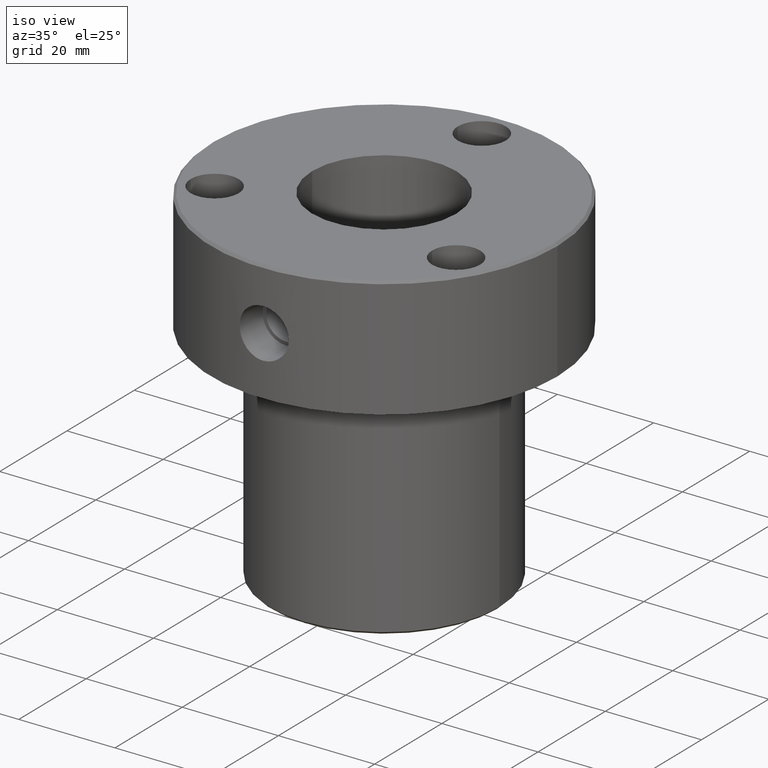
[diagram: clean part render]
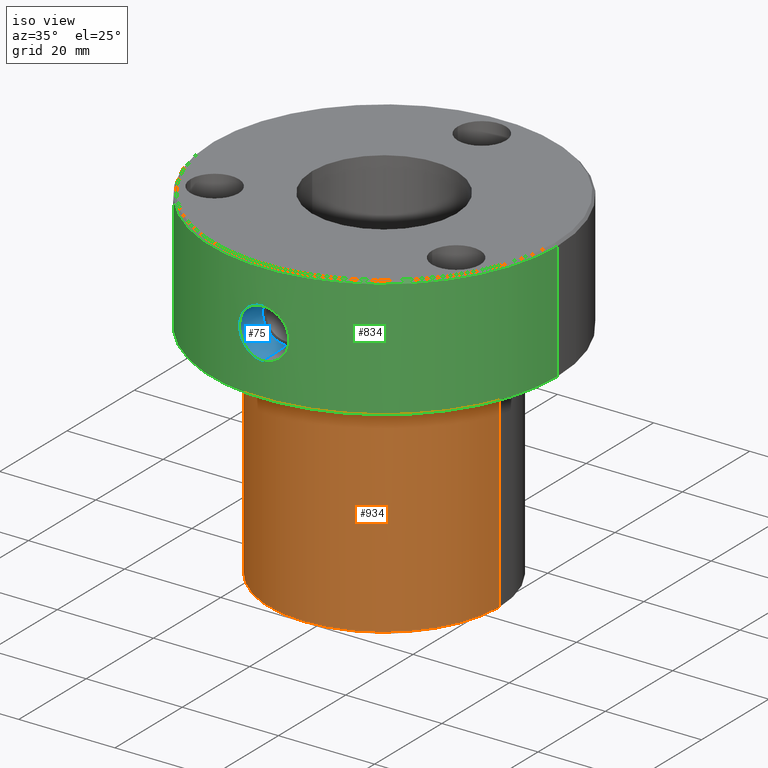
[diagram: same view with three faces highlighted in distinct colors, each labeled with its STEP entity id]
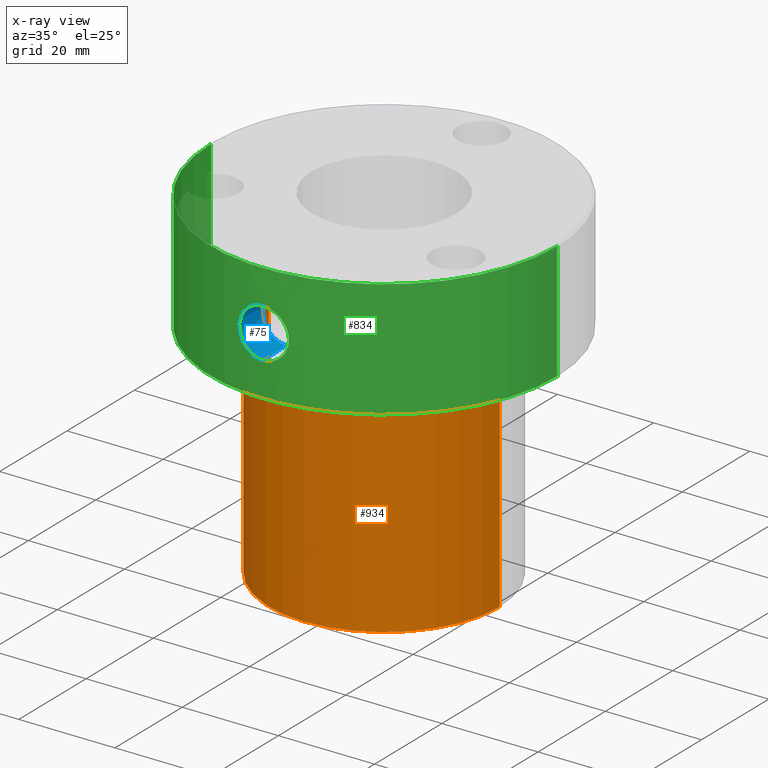
[diagram: x-ray of the same camera — body ghosted, the three highlighted faces saturated]
A machine part, iso view with three faces highlighted in distinct colors.
The next image is the same camera in x-ray (body ghosted, the three faces saturated) — at least one of them is partly hidden behind the body in this view.
Their STEP definitions:

[orange] entity #934 — the highlighted cylindrical surface (partial cylindrical patch) has radius 24 mm, axis along (-0, -0, 1).
#31 = VECTOR ( 'NONE', #103, 1000.000000000000000 ) ;
#103 = DIRECTION ( 'NONE',  ( -0.000000000000000000, -0.000000000000000000, 1.000000000000000000 ) ) ;
#159 = CARTESIAN_POINT ( 'NONE',  ( -24.00000000000000000, 2.939152317953647894E-15, -71.50000000000000000 ) ) ;
#172 = EDGE_LOOP ( 'NONE', ( #993, #276, #611, #265 ) ) ;
#220 = AXIS2_PLACEMENT_3D ( 'NONE', #839, #913, #845 ) ;
#225 = VERTEX_POINT ( 'NONE', #526 ) ;
#239 = DIRECTION ( 'NONE',  ( -1.000000000000000000, 0.000000000000000000, 0.000000000000000000 ) ) ;
#248 = AXIS2_PLACEMENT_3D ( 'NONE', #426, #609, #239 ) ;
#265 = ORIENTED_EDGE ( 'NONE', *, *, #950, .F. ) ;
#276 = ORIENTED_EDGE ( 'NONE', *, *, #604, .T. ) ;
#312 = VERTEX_POINT ( 'NONE', #159 ) ;
#345 = LINE ( 'NONE', #1122, #1079 ) ;
#418 = CARTESIAN_POINT ( 'NONE',  ( 24.00000000000000000, 0.000000000000000000, -24.99999999999999289 ) ) ;
#426 = CARTESIAN_POINT ( 'NONE',  ( 0.000000000000000000, 0.000000000000000000, -71.50000000000000000 ) ) ;
#464 = DIRECTION ( 'NONE',  ( -0.000000000000000000, -0.000000000000000000, 1.000000000000000000 ) ) ;
#526 = CARTESIAN_POINT ( 'NONE',  ( 24.00000000000000000, 0.000000000000000000, -71.50000000000000000 ) ) ;
#538 = EDGE_CURVE ( 'NONE', #225, #908, #591, .T. ) ;
#591 = LINE ( 'NONE', #882, #31 ) ;
#592 = DIRECTION ( 'NONE',  ( 1.000000000000000000, 0.000000000000000000, 0.000000000000000000 ) ) ;
#604 = EDGE_CURVE ( 'NONE', #312, #225, #1050, .T. ) ;
#609 = DIRECTION ( 'NONE',  ( -0.000000000000000000, -0.000000000000000000, 1.000000000000000000 ) ) ;
#611 = ORIENTED_EDGE ( 'NONE', *, *, #538, .T. ) ;
#615 = EDGE_CURVE ( 'NONE', #312, #1003, #345, .T. ) ;
#641 = DIRECTION ( 'NONE',  ( -0.000000000000000000, -0.000000000000000000, 1.000000000000000000 ) ) ;
#695 = AXIS2_PLACEMENT_3D ( 'NONE', #855, #464, #592 ) ;
#839 = CARTESIAN_POINT ( 'NONE',  ( 0.000000000000000000, 0.000000000000000000, 0.000000000000000000 ) ) ;
#845 = DIRECTION ( 'NONE',  ( 1.000000000000000000, 0.000000000000000000, 0.000000000000000000 ) ) ;
#855 = CARTESIAN_POINT ( 'NONE',  ( 0.000000000000000000, 0.000000000000000000, -24.99999999999999289 ) ) ;
#882 = CARTESIAN_POINT ( 'NONE',  ( 24.00000000000000000, 0.000000000000000000, 0.000000000000000000 ) ) ;
#896 = CARTESIAN_POINT ( 'NONE',  ( -24.00000000000000000, 2.939152317953647894E-15, -24.99999999999999289 ) ) ;
#908 = VERTEX_POINT ( 'NONE', #418 ) ;
#913 = DIRECTION ( 'NONE',  ( -0.000000000000000000, -0.000000000000000000, 1.000000000000000000 ) ) ;
#934 = ADVANCED_FACE ( 'NONE', ( #1036 ), #1028, .T. ) ;
#950 = EDGE_CURVE ( 'NONE', #1003, #908, #1030, .T. ) ;
#993 = ORIENTED_EDGE ( 'NONE', *, *, #615, .F. ) ;
#1003 = VERTEX_POINT ( 'NONE', #896 ) ;
#1028 = CYLINDRICAL_SURFACE ( 'NONE', #220, 24.00000000000000000 ) ;
#1030 = CIRCLE ( 'NONE', #695, 24.00000000000000000 ) ;
#1036 = FACE_OUTER_BOUND ( 'NONE', #172, .T. ) ;
#1050 = CIRCLE ( 'NONE', #248, 24.00000000000000000 ) ;
#1079 = VECTOR ( 'NONE', #641, 1000.000000000000000 ) ;
#1122 = CARTESIAN_POINT ( 'NONE',  ( -24.00000000000000000, 2.939152317953647894E-15, 0.000000000000000000 ) ) ;

[blue] entity #75 — the highlighted conical surface has half-angle 1.715 deg.
#38 = CARTESIAN_POINT ( 'NONE',  ( -2.577004002287619056, -35.90872625943177354, -8.289395687327473894 ) ) ;
#44 = CARTESIAN_POINT ( 'NONE',  ( -2.275587720639904443, -35.92934925681800706, -17.37244262154168339 ) ) ;
#46 = LINE ( 'NONE', #57, #179 ) ;
#51 = DIRECTION ( 'NONE',  ( -0.000000000000000000, -1.000000000000000000, -0.000000000000000000 ) ) ;
#53 = CARTESIAN_POINT ( 'NONE',  ( -1.335362368965270274, -35.97674113740099955, -17.72768090413853415 ) ) ;
#56 = CARTESIAN_POINT ( 'NONE',  ( -0.3361067275072111560, -36.00000000000001421, -7.606626999999983596 ) ) ;
#57 = CARTESIAN_POINT ( 'NONE',  ( 0.000000000000000000, -36.00000000000000000, -17.89337299999998621 ) ) ;
#74 = CARTESIAN_POINT ( 'NONE',  ( 3.571817028434180789E-21, -36.00000000000000000, -17.89337299999998621 ) ) ;
#75 = ADVANCED_FACE ( 'NONE', ( #268 ), #450, .F. ) ;
#115 = CARTESIAN_POINT ( 'NONE',  ( -4.870061513962859578, -35.66930335032450472, -11.09241811007563072 ) ) ;
#127 = CARTESIAN_POINT ( 'NONE',  ( -5.132303483038378467, -35.63228116415699986, -12.58068670786477483 ) ) ;
#136 = CARTESIAN_POINT ( 'NONE',  ( -4.452942759247334514, -35.72402988663296242, -10.17069915215211573 ) ) ;
#140 = CARTESIAN_POINT ( 'NONE',  ( -4.615790708340534287, -35.70309573215841681, -15.02364172483657256 ) ) ;
#151 = DIRECTION ( 'NONE',  ( 0.000000000000000000, 0.000000000000000000, -1.000000000000000000 ) ) ;
#163 = EDGE_CURVE ( 'NONE', #335, #892, #245, .T. ) ;
#179 = VECTOR ( 'NONE', #432, 1000.000000000000227 ) ;
#211 = CARTESIAN_POINT ( 'NONE',  ( -4.968358492892852141, -35.65557240957834750, -14.08375826072354720 ) ) ;
#219 = CARTESIAN_POINT ( 'NONE',  ( -4.967239168825848594, -35.65572824311934852, -11.41264983495981333 ) ) ;
#245 = CIRCLE ( 'NONE', #775, 4.936178932939922603 ) ;
#258 = EDGE_CURVE ( 'NONE', #335, #645, #940, .T. ) ;
#268 = FACE_OUTER_BOUND ( 'NONE', #1032, .T. ) ;
#288 = VERTEX_POINT ( 'NONE', #74 ) ;
#315 = CARTESIAN_POINT ( 'NONE',  ( -4.082279283164364614, -35.76828787354437367, -15.88554681719237038 ) ) ;
#321 = CARTESIAN_POINT ( 'NONE',  ( -4.081358766602609656, -35.76838717605889428, -9.613498045051994012 ) ) ;
#332 = CARTESIAN_POINT ( 'NONE',  ( -3.869813446050350159, -35.79220196518004826, -9.354639173738936719 ) ) ;
#335 = VERTEX_POINT ( 'NONE', #664 ) ;
#344 = CARTESIAN_POINT ( 'NONE',  ( 0.000000000000000000, -29.08000000000000185, -12.74999999999998757 ) ) ;
#425 = CARTESIAN_POINT ( 'NONE',  ( -3.132282132631538207, -35.86455603857671548, -8.661827584422121973 ) ) ;
#432 = DIRECTION ( 'NONE',  ( 0.000000000000000000, -0.9995520592605567911, -0.02992792722492342017 ) ) ;
#450 = CONICAL_SURFACE ( 'NONE', #1159, 5.143372999999999529, 0.02993239667170296756 ) ;
#512 = CARTESIAN_POINT ( 'NONE',  ( -5.091049653408040498, -35.63820270606292695, -12.07721189375376447 ) ) ;
#522 = CARTESIAN_POINT ( 'NONE',  ( -4.870985339044030304, -35.66917535561609043, -14.40470360826312657 ) ) ;
#527 = CARTESIAN_POINT ( 'NONE',  ( -3.394016580218661261, -35.84044962157522463, -8.877090623383150358 ) ) ;
#534 = ORIENTED_EDGE ( 'NONE', *, *, #608, .F. ) ;
#535 = CARTESIAN_POINT ( 'NONE',  ( 0.000000000000000000, -36.00000000000000000, -12.74999999999998757 ) ) ;
#607 = CARTESIAN_POINT ( 'NONE',  ( -1.655426372826040105, -35.96325904331931156, -17.63009013256227320 ) ) ;
#608 = EDGE_CURVE ( 'NONE', #892, #288, #46, .T. ) ;
#617 = CARTESIAN_POINT ( 'NONE',  ( -3.132516396897012001, -35.86453791635487676, -16.83802151031922989 ) ) ;
#626 = CARTESIAN_POINT ( 'NONE',  ( -2.279323674699770486, -35.92913036428053886, -8.129239255269382625 ) ) ;
#633 = CARTESIAN_POINT ( 'NONE',  ( -5.066001198085445800, -35.64178358665389368, -11.90850973993781992 ) ) ;
#639 = CARTESIAN_POINT ( 'NONE',  ( -2.576638186247376172, -35.90875484596557499, -17.21084344985863979 ) ) ;
#645 = VERTEX_POINT ( 'NONE', #1103 ) ;
#664 = CARTESIAN_POINT ( 'NONE',  ( 6.172785113075274999E-16, -29.08000000000000185, -7.813821067060064074 ) ) ;
#708 = CARTESIAN_POINT ( 'NONE',  ( -0.6715231242244814602, -35.99412889237471092, -17.85196652225037539 ) ) ;
#723 = CARTESIAN_POINT ( 'NONE',  ( -0.8401113678963481046, -35.99057497138012707, -17.82680413233868322 ) ) ;
#775 = AXIS2_PLACEMENT_3D ( 'NONE', #344, #1100, #995 ) ;
#793 = EDGE_CURVE ( 'NONE', #645, #288, #949, .T. ) ;
#798 = CARTESIAN_POINT ( 'NONE',  ( -1.655037379787138496, -35.96329484931852960, -7.869619187362687285 ) ) ;
#821 = CARTESIAN_POINT ( 'NONE',  ( -0.6768412377640536937, -35.99513981105601346, -7.640486352620248667 ) ) ;
#875 = CARTESIAN_POINT ( 'NONE',  ( 0.000000000000000000, -29.08000000000000185, -17.68617893293991017 ) ) ;
#892 = VERTEX_POINT ( 'NONE', #875 ) ;
#900 = CARTESIAN_POINT ( 'NONE',  ( -3.390904222931096612, -35.84074771024629769, -16.62568980151061382 ) ) ;
#921 = DIRECTION ( 'NONE',  ( 3.665114028111739322E-18, -0.9995520592605567911, 0.02992792722492342017 ) ) ;
#940 = LINE ( 'NONE', #1135, #1202 ) ;
#949 = B_SPLINE_CURVE_WITH_KNOTS ( 'NONE', 3,
 ( #979, #56, #821, #1206, #798, #626, #38, #425, #527, #332, #321, #136, #1107, #115, #219, #633, #512, #1192, #127, #996, #1005, #211, #522, #140, #1011, #315, #1115, #900, #617, #639, #44, #607, #53, #723, #708, #1185, #1095, #1211 ),
 .UNSPECIFIED., .F., .F.,
 ( 4, 2, 2, 2, 2, 2, 2, 2, 2, 2, 2, 2, 2, 2, 2, 2, 2, 2, 4 ),
 ( 0.02023265630584750174, 0.02123748081429662621, 0.02224230532274575414, 0.02324712983119488208, 0.02425195433964400654, 0.02525677884809313448, 0.02626160335654226241, 0.02726642786499138688, 0.02776884011921594911, 0.02827125237344051134, 0.02927607688188963581, 0.03028090139033876027, 0.03128572589878789167, 0.03229055040723700920, 0.03329537491568613367, 0.03430019942413525813, 0.03530502393258437566, 0.03580743618680894136, 0.03630984844103350012 ),
 .UNSPECIFIED. ) ;
#979 = CARTESIAN_POINT ( 'NONE',  ( 6.298815282759539701E-16, -36.00000000000000000, -7.606626999999987149 ) ) ;
#985 = ORIENTED_EDGE ( 'NONE', *, *, #258, .T. ) ;
#995 = DIRECTION ( 'NONE',  ( 0.000000000000000000, 0.000000000000000000, -1.000000000000000000 ) ) ;
#996 = CARTESIAN_POINT ( 'NONE',  ( -5.132480326373275226, -35.63225569218960942, -13.08318454073698511 ) ) ;
#1005 = CARTESIAN_POINT ( 'NONE',  ( -5.100166516558003238, -35.63695738235751520, -13.41789004543118402 ) ) ;
#1011 = CARTESIAN_POINT ( 'NONE',  ( -4.456035437276217870, -35.72365000573475413, -15.32423349465898177 ) ) ;
#1032 = EDGE_LOOP ( 'NONE', ( #1145, #985, #1086, #534 ) ) ;
#1086 = ORIENTED_EDGE ( 'NONE', *, *, #793, .T. ) ;
#1095 = CARTESIAN_POINT ( 'NONE',  ( -0.1675429042383714540, -36.00000000000000711, -17.89337299999999331 ) ) ;
#1100 = DIRECTION ( 'NONE',  ( -0.000000000000000000, -1.000000000000000000, -0.000000000000000000 ) ) ;
#1103 = CARTESIAN_POINT ( 'NONE',  ( 6.298815282759539701E-16, -36.00000000000000000, -7.606626999999987149 ) ) ;
#1107 = CARTESIAN_POINT ( 'NONE',  ( -4.613851569483705894, -35.70334822312924672, -10.47230001879731631 ) ) ;
#1115 = CARTESIAN_POINT ( 'NONE',  ( -3.867744682383481347, -35.79242907306673516, -16.14777688475753337 ) ) ;
#1135 = CARTESIAN_POINT ( 'NONE',  ( 6.298815281270918744E-16, -36.00000000000000000, -7.606626999999987149 ) ) ;
#1145 = ORIENTED_EDGE ( 'NONE', *, *, #163, .F. ) ;
#1159 = AXIS2_PLACEMENT_3D ( 'NONE', #535, #51, #151 ) ;
#1185 = CARTESIAN_POINT ( 'NONE',  ( -0.3353535181282963351, -35.99883048162996602, -17.88517202957152108 ) ) ;
#1192 = CARTESIAN_POINT ( 'NONE',  ( -5.124100043890623013, -35.63346569493480587, -12.41299369725978963 ) ) ;
#1202 = VECTOR ( 'NONE', #921, 1000.000000000000227 ) ;
#1206 = CARTESIAN_POINT ( 'NONE',  ( -1.334472260636662133, -35.97676177568234124, -7.772172400854750585 ) ) ;
#1211 = CARTESIAN_POINT ( 'NONE',  ( 3.571817028434180789E-21, -36.00000000000000000, -17.89337299999998621 ) ) ;

[green] entity #834 — the highlighted cylindrical surface (partial cylindrical patch) has radius 36 mm, axis along (-0, -0, 1).
#5 = DIRECTION ( 'NONE',  ( -0.000000000000000000, -0.000000000000000000, 1.000000000000000000 ) ) ;
#8 = CARTESIAN_POINT ( 'NONE',  ( 3.135146423121419890, -35.86431980584649892, -16.83614949334460675 ) ) ;
#32 = EDGE_CURVE ( 'NONE', #288, #645, #904, .T. ) ;
#38 = CARTESIAN_POINT ( 'NONE',  ( -2.577004002287619056, -35.90872625943177354, -8.289395687327473894 ) ) ;
#39 = CARTESIAN_POINT ( 'NONE',  ( 36.00000000000000000, 0.000000000000000000, -24.99999999999999289 ) ) ;
#44 = CARTESIAN_POINT ( 'NONE',  ( -2.275587720639904443, -35.92934925681800706, -17.37244262154168339 ) ) ;
#53 = CARTESIAN_POINT ( 'NONE',  ( -1.335362368965270274, -35.97674113740099955, -17.72768090413853415 ) ) ;
#56 = CARTESIAN_POINT ( 'NONE',  ( -0.3361067275072111560, -36.00000000000001421, -7.606626999999983596 ) ) ;
#74 = CARTESIAN_POINT ( 'NONE',  ( 3.571817028434180789E-21, -36.00000000000000000, -17.89337299999998621 ) ) ;
#76 = CARTESIAN_POINT ( 'NONE',  ( 1.654126241111264051, -35.96234114261679338, -7.878137646354945289 ) ) ;
#79 = ORIENTED_EDGE ( 'NONE', *, *, #204, .T. ) ;
#82 = FACE_BOUND ( 'NONE', #314, .T. ) ;
#96 = CARTESIAN_POINT ( 'NONE',  ( 3.134851411221557971, -35.86436338319735029, -8.663408683850164493 ) ) ;
#106 = DIRECTION ( 'NONE',  ( 1.000000000000000000, 0.000000000000000000, 0.000000000000000000 ) ) ;
#114 = VERTEX_POINT ( 'NONE', #632 ) ;
#115 = CARTESIAN_POINT ( 'NONE',  ( -4.870061513962859578, -35.66930335032450472, -11.09241811007563072 ) ) ;
#127 = CARTESIAN_POINT ( 'NONE',  ( -5.132303483038378467, -35.63228116415699986, -12.58068670786477483 ) ) ;
#136 = CARTESIAN_POINT ( 'NONE',  ( -4.452942759247334514, -35.72402988663296242, -10.17069915215211573 ) ) ;
#140 = CARTESIAN_POINT ( 'NONE',  ( -4.615790708340534287, -35.70309573215841681, -15.02364172483657256 ) ) ;
#169 = CARTESIAN_POINT ( 'NONE',  ( 4.968518926129060098, -35.65554893085495536, -11.41781017927310771 ) ) ;
#178 = CARTESIAN_POINT ( 'NONE',  ( 4.073750510498462596, -35.76892631714162718, -9.616935401809428186 ) ) ;
#189 = ORIENTED_EDGE ( 'NONE', *, *, #970, .T. ) ;
#204 = EDGE_CURVE ( 'NONE', #562, #114, #532, .T. ) ;
#211 = CARTESIAN_POINT ( 'NONE',  ( -4.968358492892852141, -35.65557240957834750, -14.08375826072354720 ) ) ;
#219 = CARTESIAN_POINT ( 'NONE',  ( -4.967239168825848594, -35.65572824311934852, -11.41264983495981333 ) ) ;
#271 = EDGE_CURVE ( 'NONE', #805, #114, #1131, .T. ) ;
#288 = VERTEX_POINT ( 'NONE', #74 ) ;
#291 = CARTESIAN_POINT ( 'NONE',  ( 6.298815282759539701E-16, -36.00000000000000000, -7.606626999999987149 ) ) ;
#314 = EDGE_LOOP ( 'NONE', ( #977, #947 ) ) ;
#315 = CARTESIAN_POINT ( 'NONE',  ( -4.082279283164364614, -35.76828787354437367, -15.88554681719237038 ) ) ;
#321 = CARTESIAN_POINT ( 'NONE',  ( -4.081358766602609656, -35.76838717605889428, -9.613498045051994012 ) ) ;
#326 = DIRECTION ( 'NONE',  ( -0.000000000000000000, -0.000000000000000000, 1.000000000000000000 ) ) ;
#332 = CARTESIAN_POINT ( 'NONE',  ( -3.869813446050350159, -35.79220196518004826, -9.354639173738936719 ) ) ;
#359 = CARTESIAN_POINT ( 'NONE',  ( 0.6695539294417952592, -35.99531588153639916, -17.86076756866215121 ) ) ;
#369 = LINE ( 'NONE', #891, #593 ) ;
#372 = DIRECTION ( 'NONE',  ( 1.000000000000000000, 0.000000000000000000, 0.000000000000000000 ) ) ;
#374 = CARTESIAN_POINT ( 'NONE',  ( 4.612444849566888827, -35.70353119707042566, -10.46937732415865874 ) ) ;
#379 = CARTESIAN_POINT ( 'NONE',  ( 3.747803063487487041, -35.80458155935752984, -9.232037138303441637 ) ) ;
#383 = ORIENTED_EDGE ( 'NONE', *, *, #457, .T. ) ;
#388 = CARTESIAN_POINT ( 'NONE',  ( 1.657239417139547255, -35.96316859498720220, -17.62941402757830645 ) ) ;
#425 = CARTESIAN_POINT ( 'NONE',  ( -3.132282132631538207, -35.86455603857671548, -8.661827584422121973 ) ) ;
#447 = ORIENTED_EDGE ( 'NONE', *, *, #271, .F. ) ;
#457 = EDGE_CURVE ( 'NONE', #805, #1216, #1161, .T. ) ;
#461 = CARTESIAN_POINT ( 'NONE',  ( 1.812095684196976642, -35.95469751019649607, -7.934954253576164795 ) ) ;
#470 = CARTESIAN_POINT ( 'NONE',  ( 2.121153321150935245, -35.93778920659239873, -17.43656400794046490 ) ) ;
#475 = CARTESIAN_POINT ( 'NONE',  ( 3.571817028434180789E-21, -36.00000000000000000, -17.89337299999998621 ) ) ;
#479 = CARTESIAN_POINT ( 'NONE',  ( 2.571459298321395526, -35.90915553629102419, -8.285819686161667974 ) ) ;
#490 = CARTESIAN_POINT ( 'NONE',  ( 4.083460599242995315, -35.76814635166661560, -15.88375512178560456 ) ) ;
#512 = CARTESIAN_POINT ( 'NONE',  ( -5.091049653408040498, -35.63820270606292695, -12.07721189375376447 ) ) ;
#522 = CARTESIAN_POINT ( 'NONE',  ( -4.870985339044030304, -35.66917535561609043, -14.40470360826312657 ) ) ;
#527 = CARTESIAN_POINT ( 'NONE',  ( -3.394016580218661261, -35.84044962157522463, -8.877090623383150358 ) ) ;
#532 = CIRCLE ( 'NONE', #925, 36.00000000000000000 ) ;
#560 = CARTESIAN_POINT ( 'NONE',  ( 1.335832289506346138, -35.97675110359922712, -17.72775875594555117 ) ) ;
#562 = VERTEX_POINT ( 'NONE', #698 ) ;
#570 = CARTESIAN_POINT ( 'NONE',  ( 0.000000000000000000, 0.000000000000000000, -24.99999999999999289 ) ) ;
#574 = DIRECTION ( 'NONE',  ( -0.000000000000000000, -0.000000000000000000, 1.000000000000000000 ) ) ;
#577 = CARTESIAN_POINT ( 'NONE',  ( 3.860273976072881918, -35.79259445657086758, -9.356314350695761561 ) ) ;
#583 = CARTESIAN_POINT ( 'NONE',  ( 3.393533373212614723, -35.84048388370862881, -8.876894584173426139 ) ) ;
#588 = CYLINDRICAL_SURFACE ( 'NONE', #1223, 36.00000000000000000 ) ;
#593 = VECTOR ( 'NONE', #326, 1000.000000000000000 ) ;
#607 = CARTESIAN_POINT ( 'NONE',  ( -1.655426372826040105, -35.96325904331931156, -17.63009013256227320 ) ) ;
#617 = CARTESIAN_POINT ( 'NONE',  ( -3.132516396897012001, -35.86453791635487676, -16.83802151031922989 ) ) ;
#619 = AXIS2_PLACEMENT_3D ( 'NONE', #570, #5, #948 ) ;
#626 = CARTESIAN_POINT ( 'NONE',  ( -2.279323674699770486, -35.92913036428053886, -8.129239255269382625 ) ) ;
#632 = CARTESIAN_POINT ( 'NONE',  ( -36.00000000000000000, 4.408728476930470856E-15, -0.4999999999999796274 ) ) ;
#633 = CARTESIAN_POINT ( 'NONE',  ( -5.066001198085445800, -35.64178358665389368, -11.90850973993781992 ) ) ;
#639 = CARTESIAN_POINT ( 'NONE',  ( -2.576638186247376172, -35.90875484596557499, -17.21084344985863979 ) ) ;
#645 = VERTEX_POINT ( 'NONE', #1103 ) ;
#663 = CARTESIAN_POINT ( 'NONE',  ( 4.870776703703421973, -35.66920957809382742, -14.40600504608524979 ) ) ;
#666 = CARTESIAN_POINT ( 'NONE',  ( 1.165764879794188413, -35.98150000286027250, -7.738214538170568702 ) ) ;
#681 = CARTESIAN_POINT ( 'NONE',  ( 0.3363308217378480625, -36.00000000000000000, -7.606626999999984484 ) ) ;
#698 = CARTESIAN_POINT ( 'NONE',  ( 36.00000000000000000, 0.000000000000000000, -0.4999999999999796274 ) ) ;
#708 = CARTESIAN_POINT ( 'NONE',  ( -0.6715231242244814602, -35.99412889237471092, -17.85196652225037539 ) ) ;
#723 = CARTESIAN_POINT ( 'NONE',  ( -0.8401113678963481046, -35.99057497138012707, -17.82680413233868322 ) ) ;
#738 = VECTOR ( 'NONE', #933, 1000.000000000000000 ) ;
#749 = CARTESIAN_POINT ( 'NONE',  ( 3.393221447277317893, -35.84051879824716025, -16.62348283471833454 ) ) ;
#763 = CARTESIAN_POINT ( 'NONE',  ( 2.570089392832816344, -35.90845072443985941, -17.20524208273297617 ) ) ;
#769 = CARTESIAN_POINT ( 'NONE',  ( 1.331207150646882331, -35.97574184921764129, -7.779769563068786198 ) ) ;
#777 = CARTESIAN_POINT ( 'NONE',  ( 4.869320642961361578, -35.66940571283051753, -11.09014689618406635 ) ) ;
#793 = EDGE_CURVE ( 'NONE', #645, #288, #949, .T. ) ;
#798 = CARTESIAN_POINT ( 'NONE',  ( -1.655037379787138496, -35.96329484931852960, -7.869619187362687285 ) ) ;
#805 = VERTEX_POINT ( 'NONE', #894 ) ;
#821 = CARTESIAN_POINT ( 'NONE',  ( -0.6768412377640536937, -35.99513981105601346, -7.640486352620248667 ) ) ;
#834 = ADVANCED_FACE ( 'NONE', ( #1166, #82 ), #588, .T. ) ;
#858 = CARTESIAN_POINT ( 'NONE',  ( 0.000000000000000000, 0.000000000000000000, 0.000000000000000000 ) ) ;
#860 = CARTESIAN_POINT ( 'NONE',  ( 0.3353092220245999511, -35.99999999999999289, -17.89337299999998621 ) ) ;
#870 = CARTESIAN_POINT ( 'NONE',  ( 5.132468915830044054, -35.63225733572879506, -13.08687422678917933 ) ) ;
#891 = CARTESIAN_POINT ( 'NONE',  ( 36.00000000000000000, 0.000000000000000000, 0.000000000000000000 ) ) ;
#894 = CARTESIAN_POINT ( 'NONE',  ( -36.00000000000000000, 4.408728476930470856E-15, -24.99999999999999289 ) ) ;
#900 = CARTESIAN_POINT ( 'NONE',  ( -3.390904222931096612, -35.84074771024629769, -16.62568980151061382 ) ) ;
#904 = B_SPLINE_CURVE_WITH_KNOTS ( 'NONE', 3,
 ( #475, #860, #359, #560, #388, #470, #958, #763, #1249, #8, #749, #1150, #490, #1038, #1051, #663, #1143, #1062, #870, #1255, #1066, #169, #777, #374, #1168, #964, #178, #577, #379, #583, #96, #479, #1243, #461, #76, #769, #666, #1158, #681, #291 ),
 .UNSPECIFIED., .F., .F.,
 ( 4, 2, 2, 2, 2, 2, 2, 2, 2, 2, 2, 2, 2, 2, 2, 2, 2, 2, 2, 4 ),
 ( 0.004144744938621530879, 0.005150239399073153028, 0.006155733859524775177, 0.006658481089750586251, 0.007161228319976396459, 0.008166722780428018608, 0.009172217240879639022, 0.01017771170133125944, 0.01118320616178287812, 0.01218870062223450026, 0.01319419508268611721, 0.01419968954313774109, 0.01520518400358935804, 0.01570793123381516998, 0.01621067846404098539, 0.01721617292449261274, 0.01822166738494424357, 0.01872441461517005898, 0.01922716184539587439, 0.02023265630584750174 ),
 .UNSPECIFIED. ) ;
#925 = AXIS2_PLACEMENT_3D ( 'NONE', #1118, #1004, #106 ) ;
#933 = DIRECTION ( 'NONE',  ( -0.000000000000000000, -0.000000000000000000, 1.000000000000000000 ) ) ;
#947 = ORIENTED_EDGE ( 'NONE', *, *, #793, .F. ) ;
#948 = DIRECTION ( 'NONE',  ( 1.000000000000000000, 0.000000000000000000, 0.000000000000000000 ) ) ;
#949 = B_SPLINE_CURVE_WITH_KNOTS ( 'NONE', 3,
 ( #979, #56, #821, #1206, #798, #626, #38, #425, #527, #332, #321, #136, #1107, #115, #219, #633, #512, #1192, #127, #996, #1005, #211, #522, #140, #1011, #315, #1115, #900, #617, #639, #44, #607, #53, #723, #708, #1185, #1095, #1211 ),
 .UNSPECIFIED., .F., .F.,
 ( 4, 2, 2, 2, 2, 2, 2, 2, 2, 2, 2, 2, 2, 2, 2, 2, 2, 2, 4 ),
 ( 0.02023265630584750174, 0.02123748081429662621, 0.02224230532274575414, 0.02324712983119488208, 0.02425195433964400654, 0.02525677884809313448, 0.02626160335654226241, 0.02726642786499138688, 0.02776884011921594911, 0.02827125237344051134, 0.02927607688188963581, 0.03028090139033876027, 0.03128572589878789167, 0.03229055040723700920, 0.03329537491568613367, 0.03430019942413525813, 0.03530502393258437566, 0.03580743618680894136, 0.03630984844103350012 ),
 .UNSPECIFIED. ) ;
#958 = CARTESIAN_POINT ( 'NONE',  ( 2.272818404094694156, -35.92849133234913239, -17.36465140196043677 ) ) ;
#964 = CARTESIAN_POINT ( 'NONE',  ( 4.175012378777728905, -35.75721056505209106, -9.753807887219853257 ) ) ;
#970 = EDGE_CURVE ( 'NONE', #1216, #562, #369, .T. ) ;
#977 = ORIENTED_EDGE ( 'NONE', *, *, #32, .F. ) ;
#979 = CARTESIAN_POINT ( 'NONE',  ( 6.298815282759539701E-16, -36.00000000000000000, -7.606626999999987149 ) ) ;
#996 = CARTESIAN_POINT ( 'NONE',  ( -5.132480326373275226, -35.63225569218960942, -13.08318454073698511 ) ) ;
#1004 = DIRECTION ( 'NONE',  ( 0.000000000000000000, 0.000000000000000000, -1.000000000000000000 ) ) ;
#1005 = CARTESIAN_POINT ( 'NONE',  ( -5.100166516558003238, -35.63695738235751520, -13.41789004543118402 ) ) ;
#1011 = CARTESIAN_POINT ( 'NONE',  ( -4.456035437276217870, -35.72365000573475413, -15.32423349465898177 ) ) ;
#1020 = EDGE_LOOP ( 'NONE', ( #447, #383, #189, #79 ) ) ;
#1038 = CARTESIAN_POINT ( 'NONE',  ( 4.454688299235059823, -35.72381133161002964, -15.32627421644871468 ) ) ;
#1046 = CARTESIAN_POINT ( 'NONE',  ( -36.00000000000000000, 4.408728476930470856E-15, 0.000000000000000000 ) ) ;
#1051 = CARTESIAN_POINT ( 'NONE',  ( 4.612450577060112522, -35.70353312065206097, -15.03093629859708713 ) ) ;
#1062 = CARTESIAN_POINT ( 'NONE',  ( 5.099012622426519314, -35.63712115515072298, -13.42446733174833362 ) ) ;
#1066 = CARTESIAN_POINT ( 'NONE',  ( 5.099130274031547394, -35.63710454467858568, -12.07612216934112404 ) ) ;
#1095 = CARTESIAN_POINT ( 'NONE',  ( -0.1675429042383714540, -36.00000000000000711, -17.89337299999999331 ) ) ;
#1103 = CARTESIAN_POINT ( 'NONE',  ( 6.298815282759539701E-16, -36.00000000000000000, -7.606626999999987149 ) ) ;
#1107 = CARTESIAN_POINT ( 'NONE',  ( -4.613851569483705894, -35.70334822312924672, -10.47230001879731631 ) ) ;
#1115 = CARTESIAN_POINT ( 'NONE',  ( -3.867744682383481347, -35.79242907306673516, -16.14777688475753337 ) ) ;
#1118 = CARTESIAN_POINT ( 'NONE',  ( 0.000000000000000000, 0.000000000000000000, -0.4999999999999796274 ) ) ;
#1131 = LINE ( 'NONE', #1046, #738 ) ;
#1143 = CARTESIAN_POINT ( 'NONE',  ( 4.968640645482770068, -35.65553174595231667, -14.08157981711600470 ) ) ;
#1150 = CARTESIAN_POINT ( 'NONE',  ( 3.867194275753138122, -35.79247892995611835, -16.14821262891811671 ) ) ;
#1158 = CARTESIAN_POINT ( 'NONE',  ( 0.6698195256892720550, -35.99528778390568107, -7.639439484074522113 ) ) ;
#1161 = CIRCLE ( 'NONE', #619, 36.00000000000000000 ) ;
#1166 = FACE_OUTER_BOUND ( 'NONE', #1020, .T. ) ;
#1168 = CARTESIAN_POINT ( 'NONE',  ( 4.455019366375490897, -35.72377563291573921, -10.17406853261149990 ) ) ;
#1185 = CARTESIAN_POINT ( 'NONE',  ( -0.3353535181282963351, -35.99883048162996602, -17.88517202957152108 ) ) ;
#1192 = CARTESIAN_POINT ( 'NONE',  ( -5.124100043890623013, -35.63346569493480587, -12.41299369725978963 ) ) ;
#1206 = CARTESIAN_POINT ( 'NONE',  ( -1.334472260636662133, -35.97676177568234124, -7.772172400854750585 ) ) ;
#1211 = CARTESIAN_POINT ( 'NONE',  ( 3.571817028434180789E-21, -36.00000000000000000, -17.89337299999998621 ) ) ;
#1216 = VERTEX_POINT ( 'NONE', #39 ) ;
#1223 = AXIS2_PLACEMENT_3D ( 'NONE', #858, #574, #372 ) ;
#1243 = CARTESIAN_POINT ( 'NONE',  ( 2.275809720756746035, -35.92932709345632247, -8.127738614779113746 ) ) ;
#1249 = CARTESIAN_POINT ( 'NONE',  ( 2.715994306536742897, -35.89767429074579752, -17.11743241194078635 ) ) ;
#1255 = CARTESIAN_POINT ( 'NONE',  ( 5.132256074719487415, -35.63228799270495273, -12.40988469272170569 ) ) ;